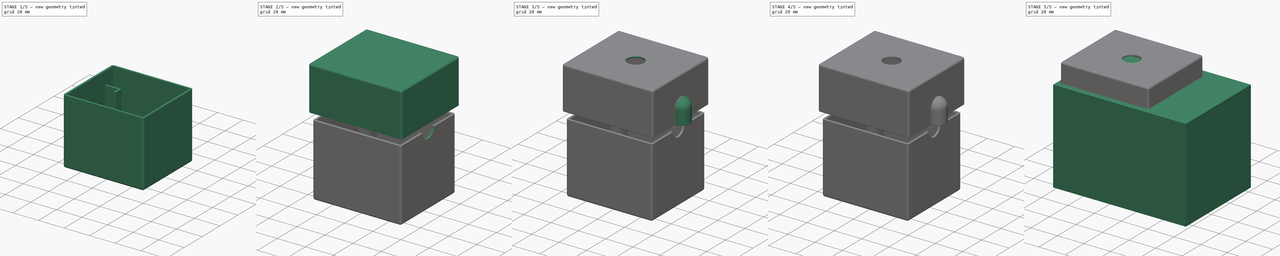
[diagram: build sequence overview — one tinted view per stage of 5, left to right]
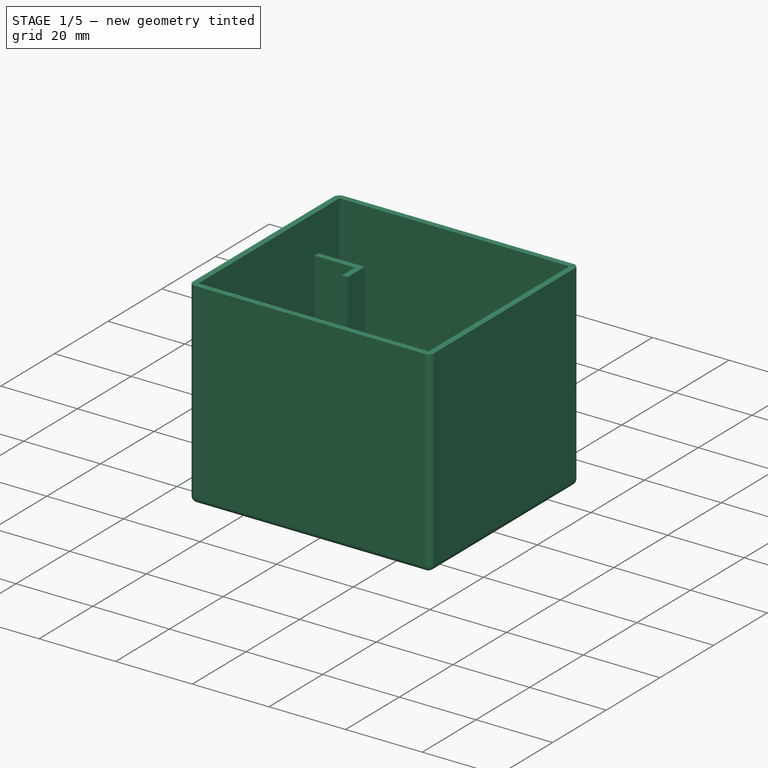
[diagram: stage 1 of 5 — iso view after this stage's code; geometry added in this stage tinted green]
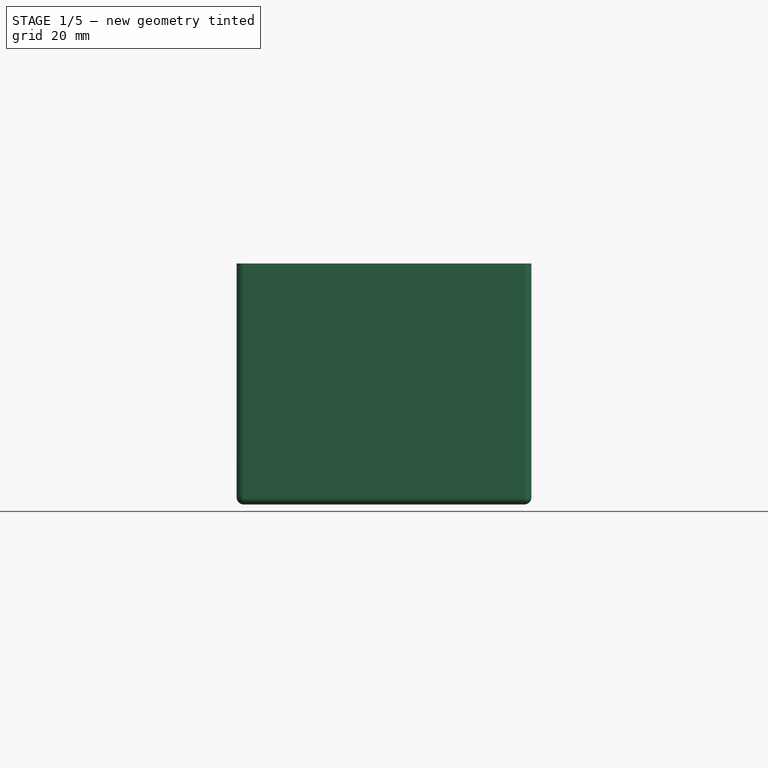
[diagram: stage 1 of 5 — front view after this stage's code; geometry added in this stage tinted green]
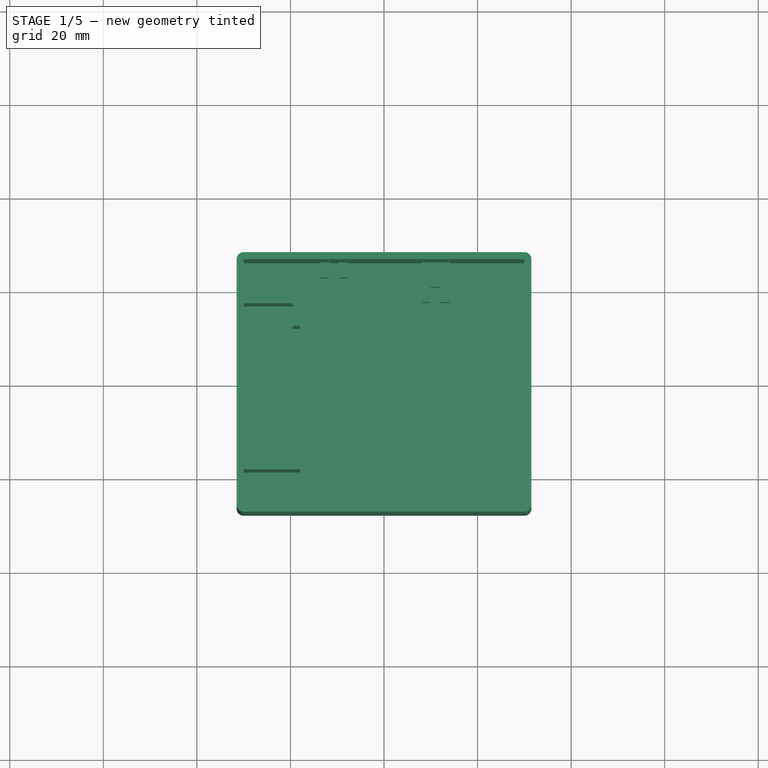
[diagram: stage 1 of 5 — top view after this stage's code; geometry added in this stage tinted green]
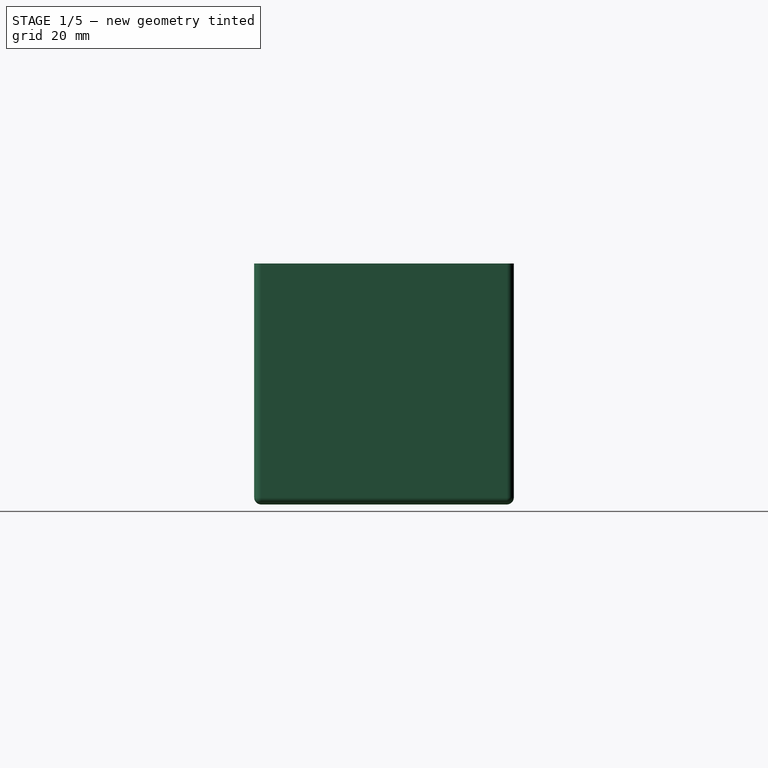
[diagram: stage 1 of 5 — right view after this stage's code; geometry added in this stage tinted green]
FCSTD DOCUMENT  (FreeCAD 0.20R29177 +426 (Git))
Label: MCU-Box
License: All rights reserved
LicenseURL: http://en.wikipedia.org/wiki/All_rights_reserved
objects: Sketcher::SketchObject×18, PartDesign::Pad×9, PartDesign::Pocket×7, PartDesign::Thickness×4, PartDesign::Fillet×4, PartDesign::Body×4, Part::Box×1, PartDesign::Hole×1, PartDesign::Revolution×1
note: 75 computed .brp shape members not serialized (recipe doc carries the construction recipe); baked Part::Feature solids carry a one-line shape summary decoded from their .brp

FEATURE [Sketcher::SketchObject] Sketch  label="Base Sketch"
  FullyConstrained = true
  MapMode = 5
  Support = -> [XY_Plane]
  sketch-geometry (5):
    g0: LineSegment StartX=30 StartY=-26.25 StartZ=0 EndX=30 EndY=26.25 EndZ=0
    g1: LineSegment StartX=30 StartY=26.25 StartZ=0 EndX=-30 EndY=26.25 EndZ=0
    g2: LineSegment StartX=-30 StartY=26.25 StartZ=0 EndX=-30 EndY=-26.25 EndZ=0
    g3: LineSegment StartX=-30 StartY=-26.25 StartZ=0 EndX=30 EndY=-26.25 EndZ=0
    g4: GeomPoint X=0 Y=0 Z=0
  constraints (12):
    c: Coincident(g0,g1)
    c: Coincident(g1,g2)
    c: Coincident(g2,g3)
    c: Coincident(g3,g0)
    c: Horizontal(g1)
    c: Horizontal(g3)
    c: Vertical(g0)
    c: Vertical(g2)
    c: Symmetric(g1,g0,g4)
    c: Coincident(g4,g-1)
    c: DistanceY(g0,g0) = 52.5  'Width'
    c: DistanceX(g1,g1) = 60  'Length'
FEATURE [PartDesign::Pad] Pad  label="BottomBox"
  Direction = (0,0,1)
  Length = 50
  Length2 = 10
  Profile = -> Sketch
  ReferenceAxis = -> Sketch [N_Axis]
  Refine = true
  Type = 0
FEATURE [PartDesign::Thickness] Thickness  label="BottomShell"
  Base = -> Pad [Face6]
  BaseFeature = -> Pad
  Intersection = false
  Join = 0
  Mode = 0
  Refine = true
  SupportTransform = false
  Value = 1.5
FEATURE [Sketcher::SketchObject] Sketch001  label="Batt Sketch"
  ExternalGeometry = -> [Sketch]
  FullyConstrained = false
  MapMode = 5
  Support = -> [Thickness]
  sketch-geometry (7):
    g0: LineSegment StartX=-60.7794 StartY=0 StartZ=0 EndX=55.3393 EndY=0 EndZ=0
    g1: GeomPoint X=-24.75 Y=0 Z=0
    g2: LineSegment StartX=-31.5 StartY=-18.5 StartZ=0 EndX=-31.5 EndY=18.5 EndZ=0
    g3: LineSegment StartX=-31.5 StartY=18.5 StartZ=0 EndX=-18 EndY=18.5 EndZ=0
    g4: LineSegment StartX=-18 StartY=18.5 StartZ=0 EndX=-18 EndY=-18.5 EndZ=0
    g5: LineSegment StartX=-18 StartY=-18.5 StartZ=0 EndX=-31.5 EndY=-18.5 EndZ=0
    g6: GeomPoint X=-24.75 Y=0 Z=0
  constraints (15):
    c: PointOnObject(g1,g0)
    c: Coincident(g2,g3)
    c: Coincident(g3,g4)
    c: Coincident(g4,g5)
    c: Coincident(g5,g2)
    c: Horizontal(g3)
    c: Horizontal(g5)
    c: Vertical(g2)
    c: Vertical(g4)
    c: Symmetric(g3,g2,g6)
    c: Coincident(g6,g1)
    c: Tangent(g0,g-1)
    c: DistanceX(g3,g3) = 13.5
    c: DistanceX(g2,g-3) = 1.5
    c: DistanceY(g2,g2) = 37
FEATURE [PartDesign::Pad] Pad001  label="Batt Holder Box"
  BaseFeature = -> Thickness
  Direction = (0,0,1)
  Length = 40
  Length2 = 10
  Profile = -> Sketch001
  ReferenceAxis = -> Sketch001 [N_Axis]
  Refine = true
  Type = 0
FEATURE [Sketcher::SketchObject] Sketch002
  ExternalGeometry = -> [Sketch001,Pad001]
  FullyConstrained = true
  MapMode = 5
  Placement = pos=(0,0,40) rot=(0,0,1;0rad)
  Support = -> [Pad001]
  sketch-geometry (8):
    g0: LineSegment StartX=-30 StartY=17 StartZ=0 EndX=-19.5 EndY=17 EndZ=0
    g1: LineSegment StartX=-19.5 StartY=-17 StartZ=0 EndX=-30 EndY=-17 EndZ=0
    g2: LineSegment StartX=-30 StartY=-17 StartZ=0 EndX=-30 EndY=17 EndZ=0
    g3: LineSegment StartX=-19.5 StartY=17 StartZ=0 EndX=-19.5 EndY=12.17 EndZ=0
    g4: LineSegment StartX=-19.5 StartY=12.17 StartZ=0 EndX=-16.57 EndY=12.17 EndZ=0
    g5: LineSegment StartX=-16.57 StartY=12.17 StartZ=0 EndX=-16.57 EndY=-12.17 EndZ=0
    g6: LineSegment StartX=-16.57 StartY=-12.17 StartZ=0 EndX=-19.5 EndY=-12.17 EndZ=0
    g7: LineSegment StartX=-19.5 StartY=-12.17 StartZ=0 EndX=-19.5 EndY=-17 EndZ=0
  constraints (24):
    c: Coincident(g1,g2)
    c: Coincident(g2,g0)
    c: Horizontal(g0)
    c: Horizontal(g1)
    c: Vertical(g2)
    c: DistanceY(g0,g-3) = 1.5
    c: DistanceX(g-3,g0) = 1.5
    c: DistanceX(g1,g-4) = 1.5
    c: DistanceY(g-4,g1) = 1.5
    c: Coincident(g0,g3)
    c: Vertical(g3)
    c: Coincident(g3,g4)
    c: Horizontal(g4)
    c: Coincident(g4,g5)
    c: Vertical(g5)
    c: Coincident(g5,g6)
    c: Horizontal(g6)
    c: Coincident(g6,g7)
    c: Coincident(g7,g1)
    c: Vertical(g7)
    c: Equal(g3,g7)
    c: DistanceX(g0,g-5) = 1.5
    c: DistanceY(g3,g3) = 4.83
    c: DistanceX(g4,g4) = 2.93
FEATURE [PartDesign::Pocket] Pocket  label="Batt Holder final"
  BaseFeature = -> Pad001
  Direction = (0,0,-1)
  Length = 40
  Length2 = 5
  Profile = -> Sketch002
  ReferenceAxis = -> Sketch002 [N_Axis]
  Refine = true
  Type = 0
FEATURE [PartDesign::Pad] Pad002  label="PCBHolders"
  BaseFeature = -> Pocket
  Direction = (0,0,1)
  Length = 10
  Length2 = 10
  Profile = -> Sketch003
  ReferenceAxis = -> Sketch003 [N_Axis]
  Refine = true
  Type = 0
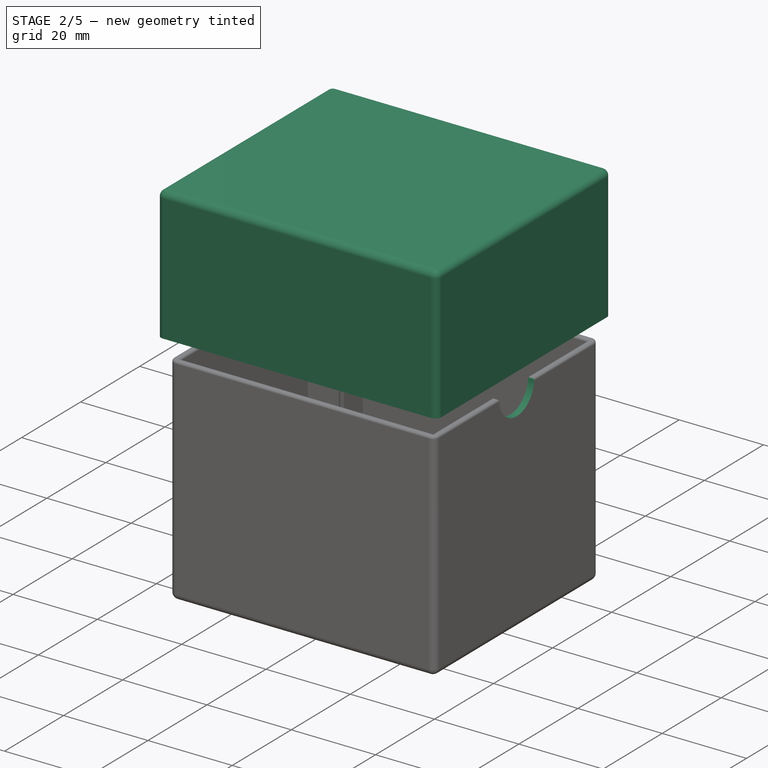
[diagram: stage 2 of 5 — iso view after this stage's code; geometry added in this stage tinted green]
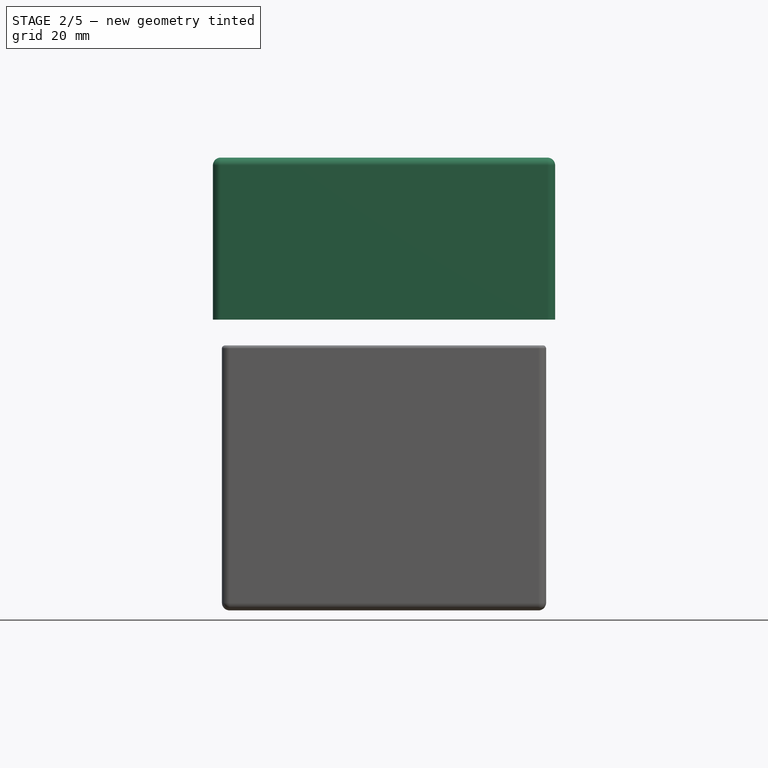
[diagram: stage 2 of 5 — front view after this stage's code; geometry added in this stage tinted green]
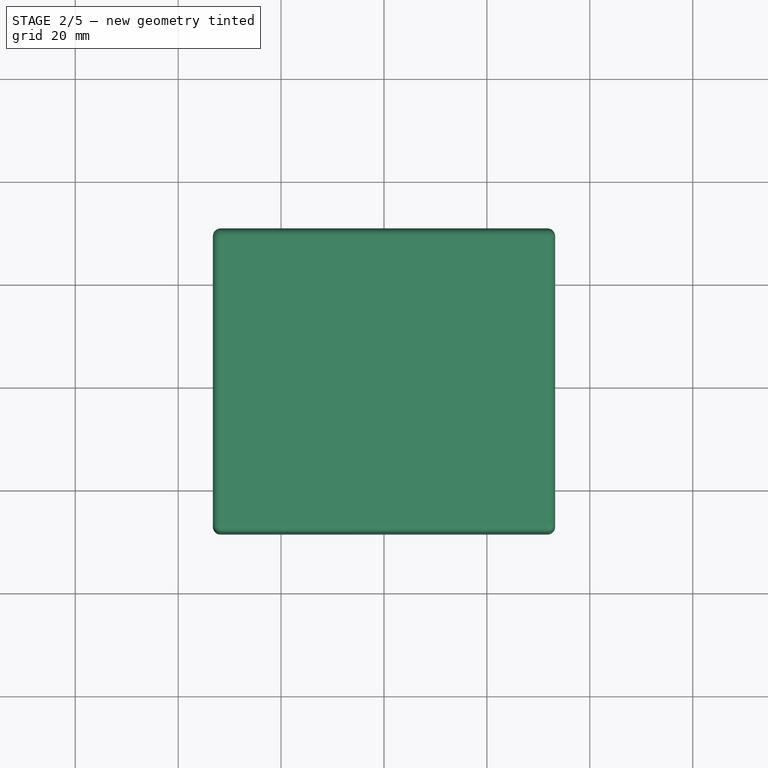
[diagram: stage 2 of 5 — top view after this stage's code; geometry added in this stage tinted green]
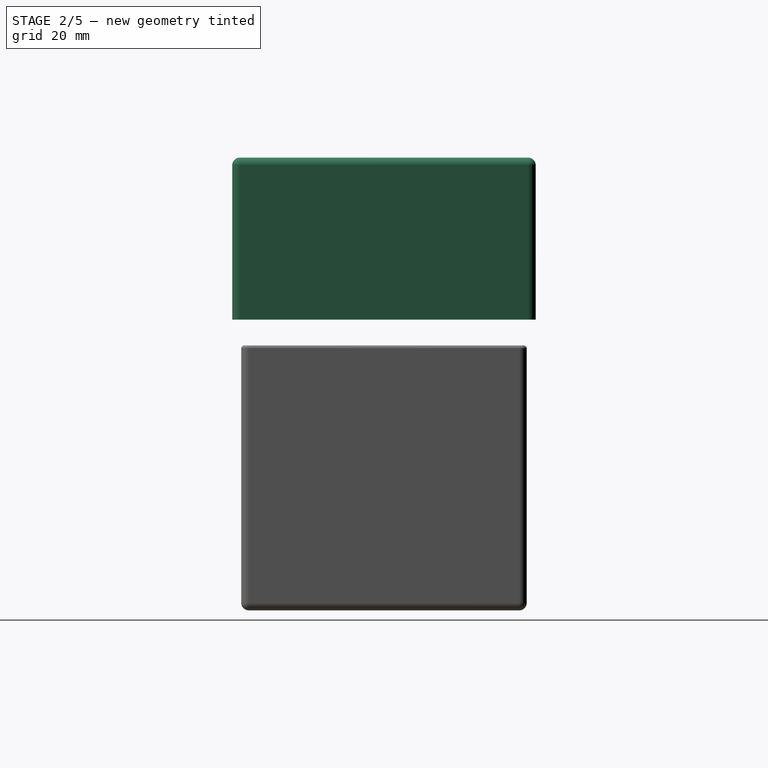
[diagram: stage 2 of 5 — right view after this stage's code; geometry added in this stage tinted green]
FEATURE [PartDesign::Fillet] Fillet  label="Holders Fillet"
  Base = -> Pad002 [Edge126,Edge122,Edge121,Edge117,Edge83,Edge87,Edge88,Edge92,Edge93,Edge152,Edge149,Edge101,Edge116,Edge148,Edge108,Edge145,Edge138,Edge132]
  BaseFeature = -> Pad002
  Radius = 0.74
  Refine = true
  SupportTransform = false
  UseAllEdges = false
FEATURE [Sketcher::SketchObject] Sketch005  label="CableHole"
  FullyConstrained = true
  MapMode = 5
  Placement = pos=(31.5,0,0) rot=(0.57735,0.57735,0.57735;2.0944rad)
  Support = -> [Fillet]
  expr: Constraints[2] = <<BottomBox>>.Length
  sketch-geometry (1):
    g0: Circle CenterX=0 CenterY=50 CenterZ=0 NormalX=0 NormalY=0 NormalZ=1 AngleXU=0 Radius=4
  constraints (3):
    c: Radius(g0) = 4
    c: DistanceX(g-1,g0) = 0
    c: DistanceY(g-1,g0) = 50
FEATURE [PartDesign::Hole] Hole
  BaseFeature = -> Fillet
  CustomThreadClearance = 0
  Depth = 25
  DepthType = 0
  Diameter = 12
  DrillForDepth = false
  DrillPoint = 1
  DrillPointAngle = 118
  HoleCutCountersinkAngle = 90
  HoleCutCustomValues = false
  HoleCutDepth = 0
  HoleCutDiameter = 0
  HoleCutType = 0
  ModelThread = false
  Profile = -> Sketch005
  Refine = true
  Tapered = false
  TaperedAngle = 90
  ThreadClass = 0
  ThreadDepth = 25
  ThreadDepthType = 0
  ThreadDirection = 0
  ThreadFit = 0
  ThreadSize = 0
  ThreadType = 0
  Threaded = false
  UseCustomThreadClearance = false
FEATURE [Sketcher::SketchObject] Sketch006  label="TopBase"
  AttachmentOffset = pos=(0,0,85) rot=(0,0,1;0rad)
  FullyConstrained = true
  MapMode = 5
  Placement = pos=(0,0,85) rot=(0,0,1;0rad)
  Support = -> [XY_Plane001]
  expr: Constraints[6] = <<Base Sketch>>.Constraints.Width + <<BottomShell>>.Value * 2 + 0.5mm
  expr: Constraints[7] = <<Base Sketch>>.Constraints.Length + <<BottomShell>>.Value * 2 + 0.5mm
  sketch-geometry (4):
    g0: LineSegment StartX=-31.75 StartY=28 StartZ=0 EndX=31.75 EndY=28 EndZ=0
    g1: LineSegment StartX=31.75 StartY=28 StartZ=0 EndX=31.75 EndY=-28 EndZ=0
    g2: LineSegment StartX=31.75 StartY=-28 StartZ=0 EndX=-31.75 EndY=-28 EndZ=0
    g3: LineSegment StartX=-31.75 StartY=-28 StartZ=0 EndX=-31.75 EndY=28 EndZ=0
  constraints (10):
    c: Coincident(g0,g1)
    c: Coincident(g1,g2)
    c: Coincident(g2,g3)
    c: Coincident(g3,g0)
    c: Horizontal(g2)
    c: Vertical(g1)
    c: DistanceY(g2,g0) = 56
    c: DistanceX(g0,g0) = 63.5
    c: Symmetric(g0,g0,g-2)
    c: Symmetric(g2,g0,g-1)
FEATURE [PartDesign::Pad] Pad004
  Direction = (0,0,1)
  Length = 30
  Length2 = 10
  Profile = -> Sketch006
  ReferenceAxis = -> Sketch006 [N_Axis]
  Refine = true
  Reversed = true
  Type = 0
FEATURE [PartDesign::Thickness] Thickness001  label="TopShell"
  Base = -> Pad004 [Face6]
  BaseFeature = -> Pad004
  Intersection = false
  Join = 0
  Mode = 0
  Refine = true
  SupportTransform = false
  Value = 1.5
FEATURE [Sketcher::SketchObject] Sketch007  label="Top-Holders"
  ExternalGeometry = -> [Sketch006]
  FullyConstrained = true
  MapMode = 5
  Placement = pos=(0,0,85) rot=(1,0,0;3.14159rad)
  Support = -> [Thickness001]
  expr: Constraints[71] = <<PCBHoldersSketch>>.Constraints.MainPCBWidth
  expr: Constraints[72] = <<PCBHoldersSketch>>.Constraints.MinPowerPCBWidth
  expr: Constraints[81] = <<PCBHoldersSketch>>.Constraints.PCBThickness
  expr: Constraints[82] = <<PCBHoldersSketch>>.Constraints.PCBThickness
  expr: Constraints[83] = <<PCBHoldersSketch>>.Constraints.PCBThickness
  expr: Constraints[84] = <<PCBHoldersSketch>>.Constraints.HolderWidth
  expr: Constraints[85] = <<PCBHoldersSketch>>.Constraints.SideOffsetPower + 1mm
  expr: Constraints[86] = <<PCBHoldersSketch>>.Constraints.SideOffsetMain + 1mm
  sketch-geometry (32):
    g0: LineSegment StartX=-8.45 StartY=23 StartZ=0 EndX=-10.45 EndY=23 EndZ=0
    g1: LineSegment StartX=-10.45 StartY=23 StartZ=0 EndX=-10.45 EndY=28 EndZ=0
    g2: LineSegment StartX=-10.45 StartY=28 StartZ=0 EndX=-8.45 EndY=28 EndZ=0
    g3: LineSegment StartX=-8.45 StartY=28 StartZ=0 EndX=-8.45 EndY=23 EndZ=0
    g4: LineSegment StartX=-12.45 StartY=-23 StartZ=0 EndX=-14.45 EndY=-23 EndZ=0
    g5: LineSegment StartX=-14.45 StartY=28 StartZ=0 EndX=-12.45 EndY=28 EndZ=0
    g6: LineSegment StartX=7.25 StartY=16 StartZ=0 EndX=9.25 EndY=16 EndZ=0
    g7: LineSegment StartX=9.25 StartY=16 StartZ=0 EndX=9.25 EndY=21 EndZ=0
    g8: LineSegment StartX=9.25 StartY=21 StartZ=0 EndX=11.25 EndY=21 EndZ=0
    g9: LineSegment StartX=11.25 StartY=21 StartZ=0 EndX=11.25 EndY=16 EndZ=0
    g10: LineSegment StartX=11.25 StartY=16 StartZ=0 EndX=13.25 EndY=16 EndZ=0
    g11: LineSegment StartX=13.25 StartY=16 StartZ=0 EndX=13.25 EndY=28 EndZ=0
    g12: LineSegment StartX=13.25 StartY=28 StartZ=0 EndX=7.25 EndY=28 EndZ=0
    g13: LineSegment StartX=7.25 StartY=28 StartZ=0 EndX=7.25 EndY=16 EndZ=0
    g14: LineSegment StartX=7.25 StartY=-16 StartZ=0 EndX=9.25 EndY=-16 EndZ=0
    g15: LineSegment StartX=9.25 StartY=-16 StartZ=0 EndX=9.25 EndY=-21 EndZ=0
    g16: LineSegment StartX=9.25 StartY=-21 StartZ=0 EndX=11.25 EndY=-21 EndZ=0
    g17: LineSegment StartX=11.25 StartY=-21 StartZ=0 EndX=11.25 EndY=-16 EndZ=0
    g18: LineSegment StartX=11.25 StartY=-16 StartZ=0 EndX=13.25 EndY=-16 EndZ=0
    g19: LineSegment StartX=13.25 StartY=-16 StartZ=0 EndX=13.25 EndY=-28 EndZ=0
    g20: LineSegment StartX=13.25 StartY=-28 StartZ=0 EndX=7.25 EndY=-28 EndZ=0
    g21: LineSegment StartX=7.25 StartY=-28 StartZ=0 EndX=7.25 EndY=-16 EndZ=0
    g22: LineSegment StartX=-10.45 StartY=-23 StartZ=0 EndX=-10.45 EndY=-28 EndZ=0
    g23: LineSegment StartX=-10.45 StartY=-28 StartZ=0 EndX=-8.45 EndY=-28 EndZ=0
    g24: LineSegment StartX=-8.45 StartY=-28 StartZ=0 EndX=-8.45 EndY=-23 EndZ=0
    g25: LineSegment StartX=-8.45 StartY=-23 StartZ=0 EndX=-10.45 EndY=-23 EndZ=0
    g26: LineSegment StartX=-12.45 StartY=-28 StartZ=0 EndX=-14.45 EndY=-28 EndZ=0
    g27: LineSegment StartX=-14.45 StartY=23 StartZ=0 EndX=-12.45 EndY=23 EndZ=0
    g28: LineSegment StartX=-14.45 StartY=28 StartZ=0 EndX=-14.45 EndY=23 EndZ=0
    g29: LineSegment StartX=-12.45 StartY=28 StartZ=0 EndX=-12.45 EndY=23 EndZ=0
    g30: LineSegment StartX=-14.45 StartY=-23 StartZ=0 EndX=-14.45 EndY=-28 EndZ=0
    g31: LineSegment StartX=-12.45 StartY=-23 StartZ=0 EndX=-12.45 EndY=-28 EndZ=0
  constraints (89):
    c: Coincident(g28,g5)
    c: Coincident(g28,g27)
    c: Coincident(g29,g5)
    c: Coincident(g29,g27)
    c: Vertical(g29)
    c: Coincident(g30,g4)
    c: Coincident(g30,g26)
    c: Vertical(g30)
    c: Coincident(g31,g4)
    c: Coincident(g31,g26)
    c: Tangent(g26,g-3)
    c: Tangent(g23,g-3)
    c: Tangent(g20,g-3)
    c: Tangent(g12,g-4)
    c: Tangent(g2,g-4)
    c: Tangent(g5,g-4)
    c: Coincident(g21,g20)
    c: Coincident(g19,g20)
    c: Coincident(g11,g12)
    c: Coincident(g12,g13)
    c: Coincident(g3,g2)
    c: Coincident(g1,g2)
    c: Coincident(g22,g23)
    c: Coincident(g24,g23)
    c: Vertical(g31)
    c: Vertical(g22)
    c: Vertical(g24)
    c: Vertical(g21)
    c: Vertical(g19)
    c: Vertical(g11)
    c: Vertical(g9)
    c: Vertical(g7)
    c: Vertical(g13)
    c: Vertical(g3)
    c: Vertical(g1)
    c: Vertical(g28)
    c: Horizontal(g27)
    c: Horizontal(g0)
    c: Horizontal(g4)
    c: Horizontal(g6)
    c: Horizontal(g8)
    c: Horizontal(g10)
    c: Horizontal(g14)
    c: Horizontal(g16)
    c: Horizontal(g18)
    c: Horizontal(g25)
    c: Coincident(g7,g8)
    c: Coincident(g9,g8)
    c: Coincident(g10,g9)
    c: Coincident(g6,g7)
    c: Coincident(g6,g13)
    c: Coincident(g10,g11)
    c: Coincident(g18,g17)
    c: Coincident(g18,g19)
    c: Coincident(g14,g15)
    c: Coincident(g14,g21)
    c: Coincident(g25,g22)
    c: Coincident(g24,g25)
    c: Coincident(g0,g1)
    c: Coincident(g0,g3)
    c: Equal(g28,g1)
    c: Equal(g1,g7)
    c: Equal(g7,g9)
    c: Equal(g9,g17)
    c: Equal(g17,g15)
    c: Equal(g15,g22)
    c: Equal(g22,g30)
    c: Coincident(g17,g16)
    c: Coincident(g15,g16)
    c: Vertical(g15)
    c: Vertical(g17)
    c: DistanceY(g15,g7) = 42
    c: DistanceY(g4,g27) = 46
    c: Equal(g27,g0)
    c: Equal(g0,g6)
    c: Equal(g6,g10)
    c: Equal(g10,g18)
    c: Equal(g18,g14)
    c: Equal(g14,g25)
    c: Equal(g25,g4)
    c: Equal(g16,g8)
    c: DistanceX(g27,g0) = 2
    c: DistanceX(g6,g9) = 2
    c: DistanceX(g4,g22) = 2
    c: DistanceX(g27,g27) = 2
    c: DistanceX(g-4,g5) = 17.3
    c: DistanceX(g-4,g12) = 39
    c: Symmetric(g6,g14,g-1)
    c: Vertical(g4,g27)
FEATURE [PartDesign::Pad] Pad005  label="Holders"
  BaseFeature = -> Thickness001
  Direction = (0,0,-1)
  Length = 10
  Length2 = 10
  Profile = -> Sketch007
  ReferenceAxis = -> Sketch007 [N_Axis]
  Refine = true
  Type = 0
FEATURE [PartDesign::Body] Body001  label="Top"
  Group = -> [Sketch006,Pad004,Thickness001,Sketch007,Pad005,Fillet002,Sketch008,Revolution,Sketch009,Pocket001,Sketch019,Pocket007,Fillet003]
  Origin = -> Origin001
  Placement = pos=(0,0,-10) rot=(0,0,1;0rad)
  Tip = -> Fillet003
FEATURE [PartDesign::Fillet] Fillet004  label="FinalFillet"
  Base = -> Hole [Face84,Face61]
  BaseFeature = -> Hole
  Radius = 0.6
  Refine = true
  SupportTransform = false
  UseAllEdges = false
FEATURE [PartDesign::Body] Body  label="Bottom"
  Group = -> [Sketch,Pad,Thickness,Sketch001,Pad001,Sketch002,Pocket,Sketch003,Pad002,Fillet,Sketch005,Hole,Fillet004]
  Origin = -> Origin
  Tip = -> Fillet004
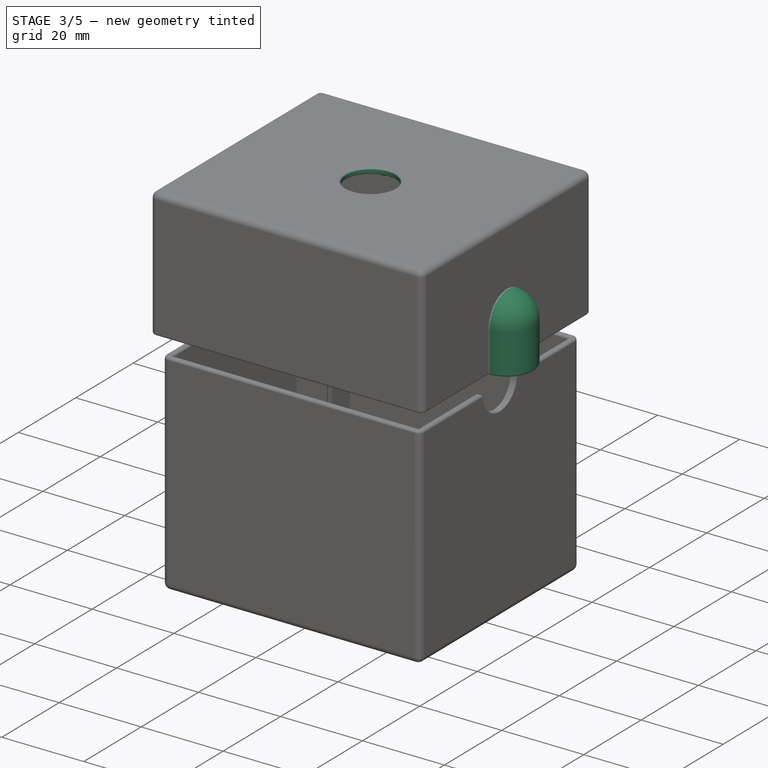
[diagram: stage 3 of 5 — iso view after this stage's code; geometry added in this stage tinted green]
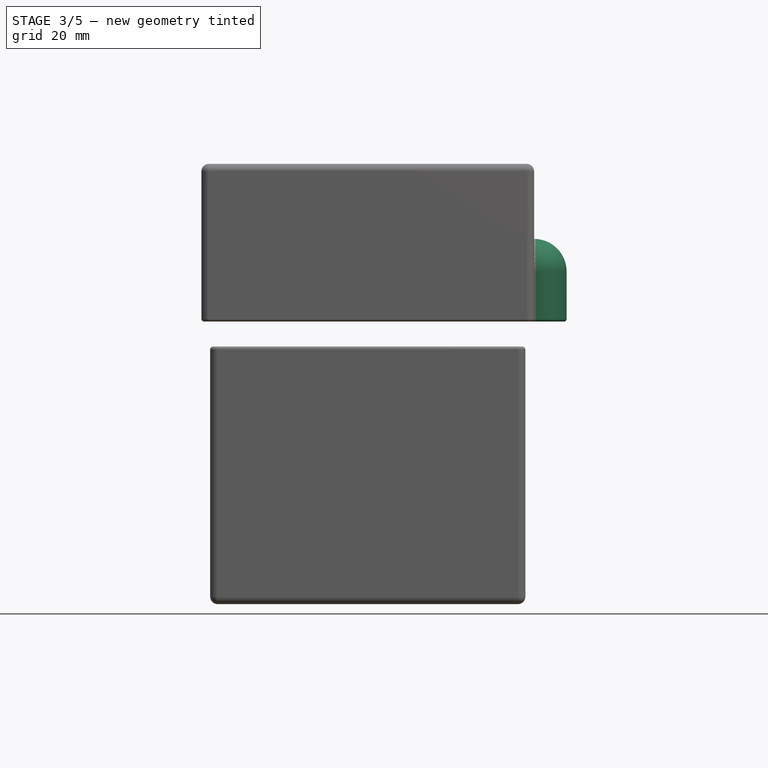
[diagram: stage 3 of 5 — front view after this stage's code; geometry added in this stage tinted green]
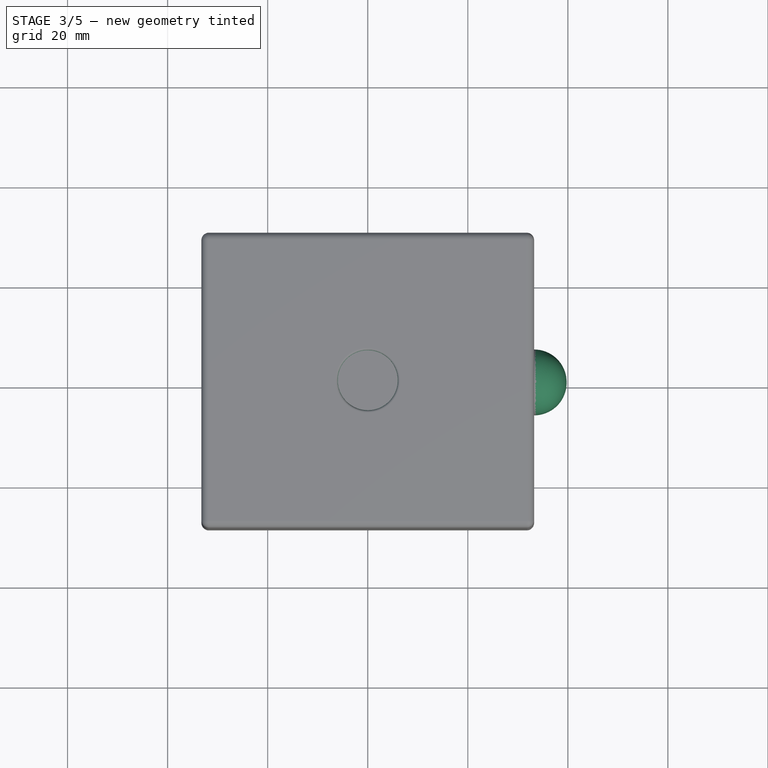
[diagram: stage 3 of 5 — top view after this stage's code; geometry added in this stage tinted green]
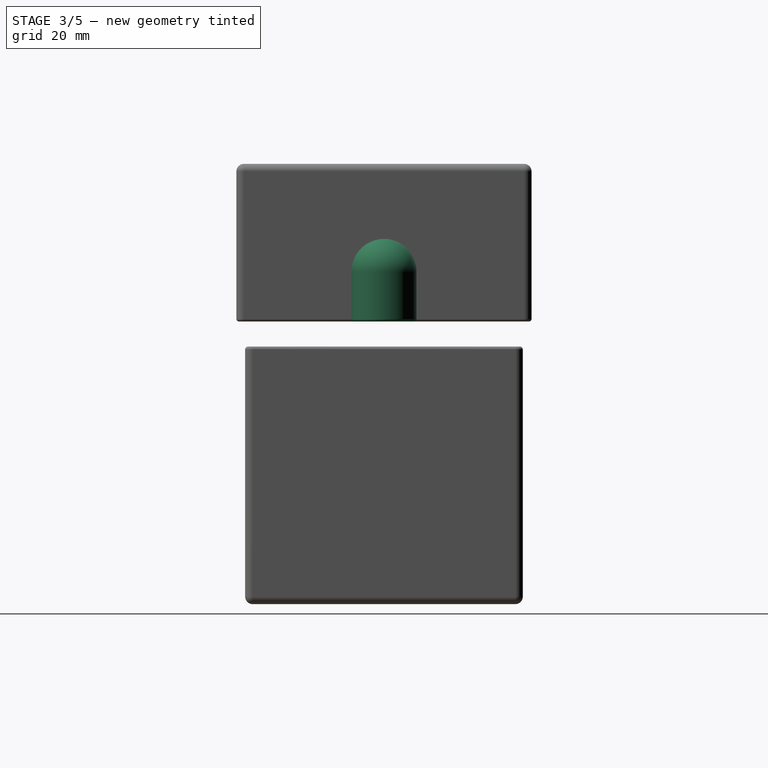
[diagram: stage 3 of 5 — right view after this stage's code; geometry added in this stage tinted green]
FEATURE [PartDesign::Fillet] Fillet002
  Base = -> Pad005 [Edge116,Edge115,Edge113,Edge111,Edge110,Edge108,Edge106,Edge105,Edge103,Edge101,Edge99,Edge97,Edge95,Edge66,Edge65,Edge64,Edge63,Edge62,Edge61,Edge60,Edge56,Edge57,Edge55,Edge51,Edge52,Edge50,Edge114,Edge112,Edge109,Edge107,Edge104,Edge102,Edge96,Edge94,Edge67,Edge84,Edge81,Edge59,Edge58,Edge54,+2 more]
  BaseFeature = -> Pad005
  Radius = 0.75
  Refine = true
  SupportTransform = false
  UseAllEdges = false
FEATURE [Sketcher::SketchObject] Sketch008  label="CableChannelSketch"
  ExternalGeometry = -> [Fillet002]
  FullyConstrained = true
  MapMode = 5
  Placement = pos=(33.25,0,0) rot=(0.57735,0.57735,0.57735;2.0944rad)
  Support = -> [Fillet002]
  sketch-geometry (7):
    g0: LineSegment StartX=-6.5 StartY=55 StartZ=0 EndX=-5 EndY=55 EndZ=0
    g1: LineSegment StartX=-5 StartY=55 StartZ=0 EndX=-5 EndY=65 EndZ=0
    g2: LineSegment StartX=-6.5 StartY=65 StartZ=0 EndX=-6.5 EndY=55 EndZ=0
    g3: GeomPoint X=0 Y=55 Z=0
    g4: ArcOfCircle CenterX=0 CenterY=65 CenterZ=0 NormalX=0 NormalY=0 NormalZ=1 AngleXU=0 Radius=5 StartAngle=1.5708 EndAngle=3.14159
    g5: ArcOfCircle CenterX=0 CenterY=65 CenterZ=0 NormalX=0 NormalY=0 NormalZ=1 AngleXU=0 Radius=6.5 StartAngle=1.5708 EndAngle=3.14159
    g6: LineSegment StartX=4e-16 StartY=71.5 StartZ=0 EndX=3e-16 EndY=70 EndZ=0
  constraints (21):
    c: Coincident(g0,g1)
    c: Coincident(g2,g0)
    c: Horizontal(g0)
    c: Vertical(g1)
    c: Vertical(g2)
    c: PointOnObject(g0,g-3)
    c: DistanceX(g0,g0) = 1.5
    c: DistanceY(g2,g2) = 10
    c: Equal(g2,g1)
    c: PointOnObject(g3,g-2)
    c: PointOnObject(g3,g-3)
    c: DistanceX(g0,g3) = 5
    c: PointOnObject(g4,g-2)
    c: Coincident(g4,g1)
    c: PointOnObject(g4,g-2)
    c: Horizontal(g1,g4)
    c: Coincident(g5,g4)
    c: Coincident(g5,g2)
    c: PointOnObject(g5,g-2)
    c: Coincident(g6,g5)
    c: Coincident(g6,g4)
FEATURE [PartDesign::Revolution] Revolution
  Angle = 180
  Axis = (0,0,1)
  Base = (33.25,0,0)
  BaseFeature = -> Fillet002
  Profile = -> Sketch008
  ReferenceAxis = -> Sketch008 [V_Axis]
  Refine = true
FEATURE [Sketcher::SketchObject] Sketch009
  ExternalGeometry = -> [Sketch008]
  FullyConstrained = true
  MapMode = 5
  Placement = pos=(31.75,0,0) rot=(0.57735,-0.57735,-0.57735;2.0944rad)
  Support = -> [Revolution]
  sketch-geometry (5):
    g0: LineSegment StartX=5 StartY=55 StartZ=0 EndX=5 EndY=65 EndZ=0
    g1: ArcOfCircle CenterX=0 CenterY=65 CenterZ=0 NormalX=0 NormalY=0 NormalZ=1 AngleXU=0 Radius=5 StartAngle=7e-16 EndAngle=1.5708
    g2: LineSegment StartX=-5 StartY=55 StartZ=0 EndX=-5 EndY=65 EndZ=0
    g3: LineSegment StartX=-5 StartY=55 StartZ=0 EndX=5 EndY=55 EndZ=0
    g4: ArcOfCircle CenterX=0 CenterY=65 CenterZ=0 NormalX=0 NormalY=0 NormalZ=1 AngleXU=0 Radius=5 StartAngle=1.5708 EndAngle=3.1416
  constraints (12):
    c: Coincident(g0,g-4)
    c: PointOnObject(g1,g-2)
    c: Coincident(g1,g-4)
    c: Coincident(g1,g-5)
    c: Coincident(g3,g2)
    c: Coincident(g3,g-3)
    c: Symmetric(g-3,g2,g-2)
    c: Vertical(g2)
    c: Coincident(g-5,g4)
    c: Coincident(g4,g1)
    c: Coincident(g4,g2)
    c: Coincident(g0,g-3)
FEATURE [PartDesign::Pocket] Pocket001  label="CutForCable"
  BaseFeature = -> Revolution
  Direction = (1,0,0)
  Length = 5
  Length2 = 5
  Profile = -> Sketch009
  ReferenceAxis = -> Sketch009 [N_Axis]
  Refine = true
  Type = 2
FEATURE [PartDesign::Body] Body003  label="SensorBoxTop"
  Group = -> [Sketch016,Pad009,Thickness003,Sketch017,Pocket005,Sketch018,Pocket006]
  Origin = -> Origin003
  Tip = -> Pocket006
FEATURE [Sketcher::SketchObject] Sketch019  label="SolarCableHoleSketch"
  FullyConstrained = true
  MapMode = 5
  Placement = pos=(0,0,86.5) rot=(0,0,1;0rad)
  sketch-geometry (1):
    g0: Circle CenterX=0 CenterY=0 CenterZ=0 NormalX=0 NormalY=0 NormalZ=1 AngleXU=0 Radius=6
  constraints (2):
    c: Coincident(g0,g-1)
    c: Radius(g0) = 6
FEATURE [PartDesign::Pocket] Pocket007
  BaseFeature = -> Pocket001
  Direction = (0,0,-1)
  Length = 5
  Length2 = 5
  Profile = -> Sketch019
  ReferenceAxis = -> Sketch019 [N_Axis]
  Refine = true
  Type = 2
FEATURE [PartDesign::Fillet] Fillet003
  Base = -> Pocket007 [Face44,Face45,Face3,Face18,Face16,Face62]
  BaseFeature = -> Pocket007
  Radius = 0.5
  Refine = true
  SupportTransform = false
  UseAllEdges = false
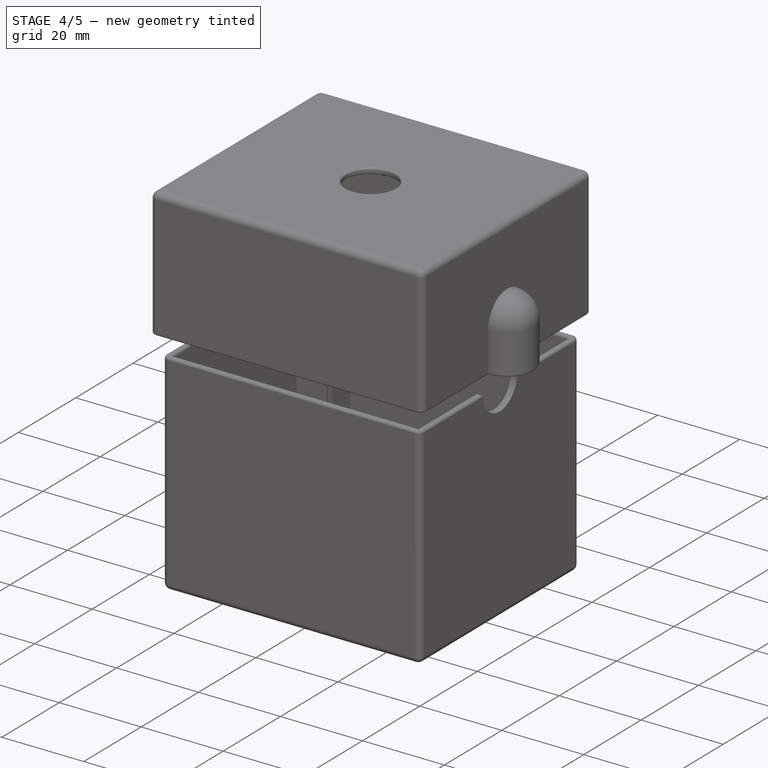
[diagram: stage 4 of 5 — iso view after this stage's code; geometry added in this stage tinted green]
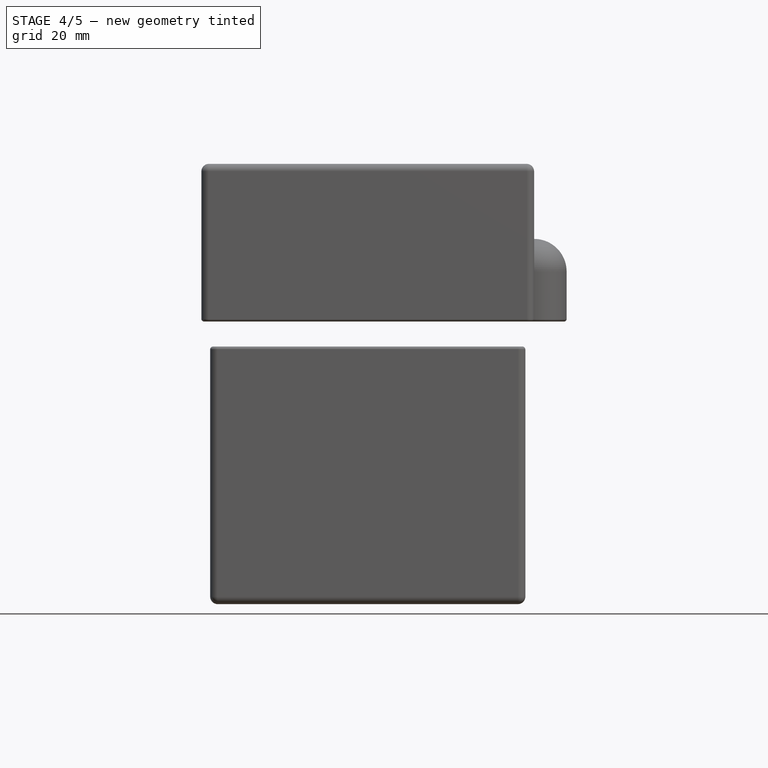
[diagram: stage 4 of 5 — front view after this stage's code; geometry added in this stage tinted green]
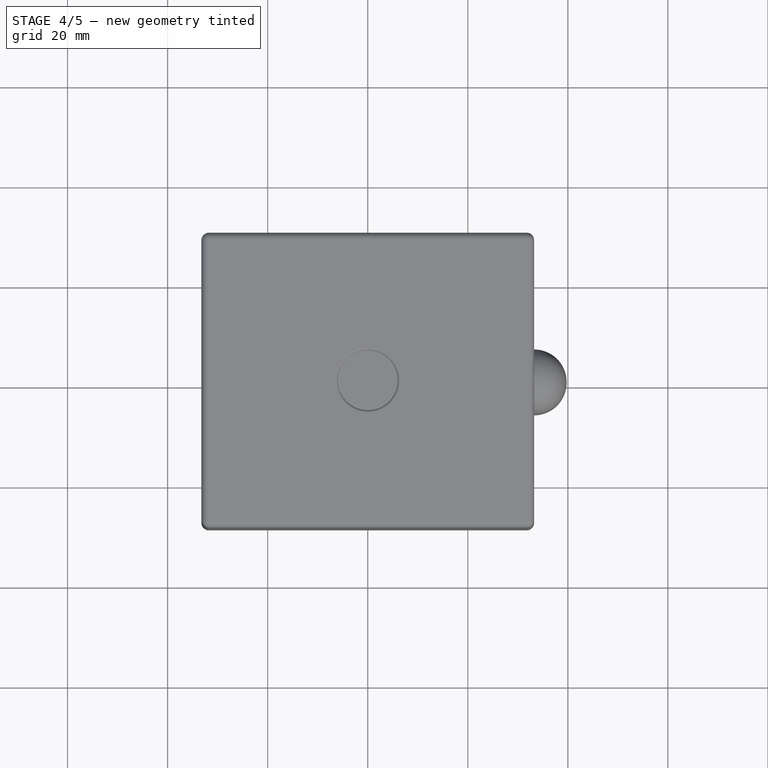
[diagram: stage 4 of 5 — top view after this stage's code; geometry added in this stage tinted green]
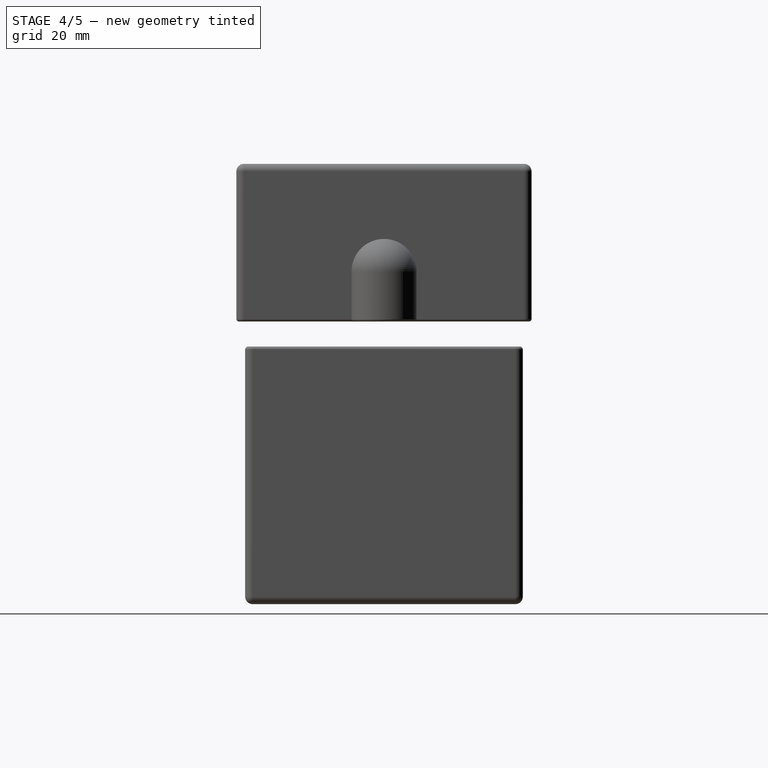
[diagram: stage 4 of 5 — right view after this stage's code; geometry added in this stage tinted green]
FEATURE [Sketcher::SketchObject] Sketch010  label="Base"
  FullyConstrained = true
  MapMode = 5
  Support = -> [XY_Plane002]
  sketch-geometry (5):
    g0: LineSegment StartX=22 StartY=-11.7 StartZ=0 EndX=22 EndY=11.7 EndZ=0
    g1: LineSegment StartX=22 StartY=11.7 StartZ=0 EndX=-22 EndY=11.7 EndZ=0
    g2: LineSegment StartX=-22 StartY=11.7 StartZ=0 EndX=-22 EndY=-11.7 EndZ=0
    g3: LineSegment StartX=-22 StartY=-11.7 StartZ=0 EndX=22 EndY=-11.7 EndZ=0
    g4: GeomPoint X=0 Y=0 Z=0
  constraints (12):
    c: Coincident(g0,g1)
    c: Coincident(g1,g2)
    c: Coincident(g2,g3)
    c: Coincident(g3,g0)
    c: Horizontal(g1)
    c: Horizontal(g3)
    c: Vertical(g0)
    c: Vertical(g2)
    c: Symmetric(g1,g0,g4)
    c: Coincident(g4,g-1)
    c: DistanceX(g1,g1) = 44
    c: DistanceY(g0,g0) = 23.4
FEATURE [PartDesign::Pad] Pad006
  Direction = (0,0,1)
  Length = 2.75
  Length2 = 10
  Profile = -> Sketch010
  ReferenceAxis = -> Sketch010 [N_Axis]
  Refine = true
  Type = 0
FEATURE [PartDesign::Thickness] Thickness002
  Base = -> Pad006 [Face6]
  BaseFeature = -> Pad006
  Intersection = false
  Join = 0
  Mode = 0
  Refine = true
  SupportTransform = false
  Value = 1
FEATURE [PartDesign::Body] Body002  label="SensorBoxBottom"
  Group = -> [Sketch010,Pad006,Thickness002,Sketch011,Pocket002,Sketch012,Pocket003,Sketch013,Pad007,Sketch014,Pad008]
  Origin = -> Origin002
  Tip = -> Pad008
FEATURE [Sketcher::SketchObject] Sketch016  label="Base001"
  FullyConstrained = true
  MapMode = 5
  Support = -> [XY_Plane003]
  sketch-geometry (5):
    g0: LineSegment StartX=22 StartY=-11.7 StartZ=0 EndX=22 EndY=11.7 EndZ=0
    g1: LineSegment StartX=22 StartY=11.7 StartZ=0 EndX=-22 EndY=11.7 EndZ=0
    g2: LineSegment StartX=-22 StartY=11.7 StartZ=0 EndX=-22 EndY=-11.7 EndZ=0
    g3: LineSegment StartX=-22 StartY=-11.7 StartZ=0 EndX=22 EndY=-11.7 EndZ=0
    g4: GeomPoint X=0 Y=0 Z=0
  constraints (12):
    c: Coincident(g0,g1)
    c: Coincident(g1,g2)
    c: Coincident(g2,g3)
    c: Coincident(g3,g0)
    c: Horizontal(g1)
    c: Horizontal(g3)
    c: Vertical(g0)
    c: Vertical(g2)
    c: Symmetric(g1,g0,g4)
    c: Coincident(g4,g-1)
    c: DistanceX(g1,g1) = 44
    c: DistanceY(g0,g0) = 23.4
FEATURE [PartDesign::Pad] Pad009
  Direction = (0,0,1)
  Length = 7
  Length2 = 10
  Profile = -> Sketch016
  ReferenceAxis = -> Sketch016 [N_Axis]
  Refine = true
  Type = 0
FEATURE [PartDesign::Thickness] Thickness003
  Base = -> Pad009 [Face6]
  BaseFeature = -> Pad009
  Intersection = false
  Join = 0
  Mode = 0
  Refine = true
  SupportTransform = false
  Value = 1
FEATURE [Sketcher::SketchObject] Sketch017  label="Plate001"
  ExternalGeometry = -> [Thickness003]
  FullyConstrained = true
  MapMode = 5
  Placement = pos=(23,0,0) rot=(0.57735,0.57735,0.57735;2.0944rad)
  Support = -> [Thickness003]
  sketch-geometry (4):
    g0: LineSegment StartX=-11.7 StartY=7 StartZ=0 EndX=11.7 EndY=7 EndZ=0
    g1: LineSegment StartX=11.7 StartY=7 StartZ=0 EndX=11.7 EndY=6 EndZ=0
    g2: LineSegment StartX=11.7 StartY=6 StartZ=0 EndX=-11.7 EndY=6 EndZ=0
    g3: LineSegment StartX=-11.7 StartY=6 StartZ=0 EndX=-11.7 EndY=7 EndZ=0
  constraints (10):
    c: Coincident(g0,g1)
    c: Coincident(g1,g2)
    c: Coincident(g2,g3)
    c: Coincident(g3,g0)
    c: Horizontal(g2)
    c: Vertical(g1)
    c: Vertical(g3)
    c: Coincident(g0,g-3)
    c: Coincident(g0,g-3)
    c: DistanceY(g3,g3) = 1
FEATURE [PartDesign::Pocket] Pocket005  label="PlateCut001"
  BaseFeature = -> Thickness003
  Direction = (-1,0,0)
  Length = 5
  Length2 = 5
  Profile = -> Sketch017
  ReferenceAxis = -> Sketch017 [N_Axis]
  Refine = true
  Type = 2
FEATURE [Sketcher::SketchObject] Sketch018  label="CableCutSketch001"
  ExternalGeometry = -> [Pocket005]
  FullyConstrained = true
  MapMode = 5
  Placement = pos=(-23,0,0) rot=(0.57735,-0.57735,-0.57735;2.0944rad)
  Support = -> [Pocket005]
  sketch-geometry (1):
    g0: Circle CenterX=0 CenterY=7 CenterZ=0 NormalX=0 NormalY=0 NormalZ=1 AngleXU=0 Radius=2.3
  constraints (3):
    c: PointOnObject(g0,g-3)
    c: Radius(g0) = 2.3
    c: PointOnObject(g0,g-2)
FEATURE [PartDesign::Pocket] Pocket006  label="CableCut001"
  BaseFeature = -> Pocket005
  Direction = (1,0,0)
  Length = 5
  Length2 = 5
  Profile = -> Sketch018
  ReferenceAxis = -> Sketch018 [N_Axis]
  Refine = true
  Type = 2
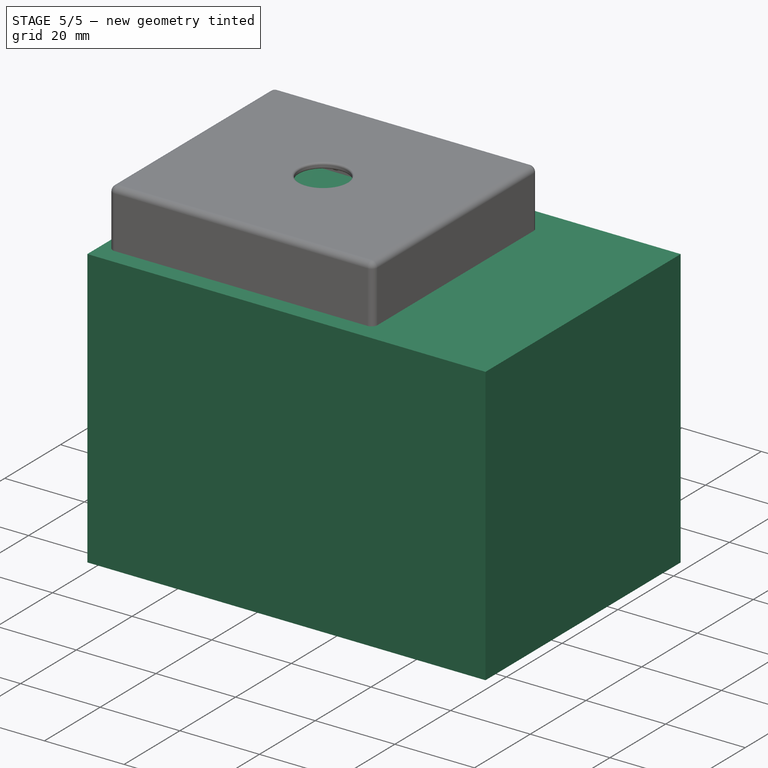
[diagram: stage 5 of 5 — iso view after this stage's code; geometry added in this stage tinted green]
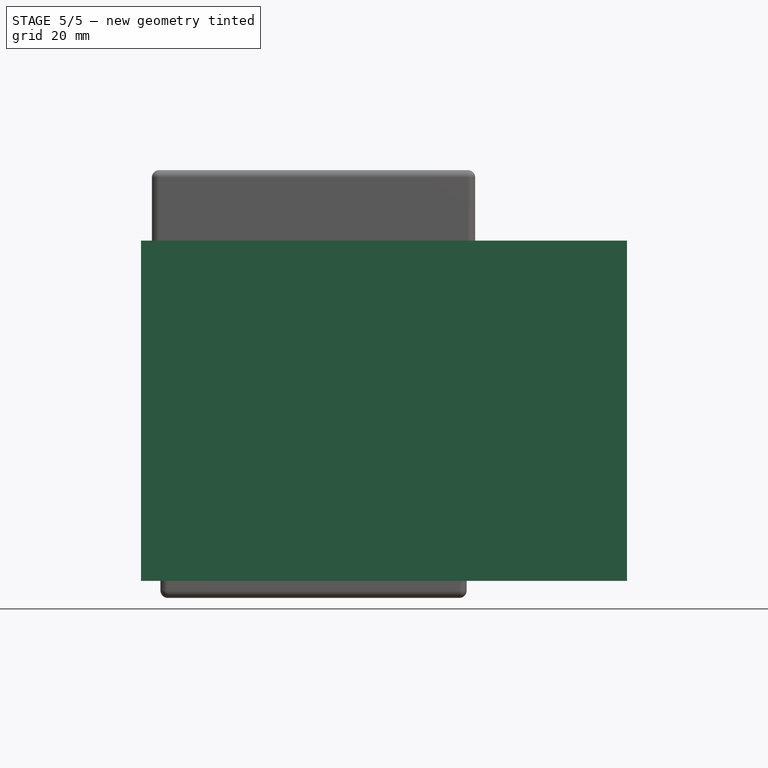
[diagram: stage 5 of 5 — front view after this stage's code; geometry added in this stage tinted green]
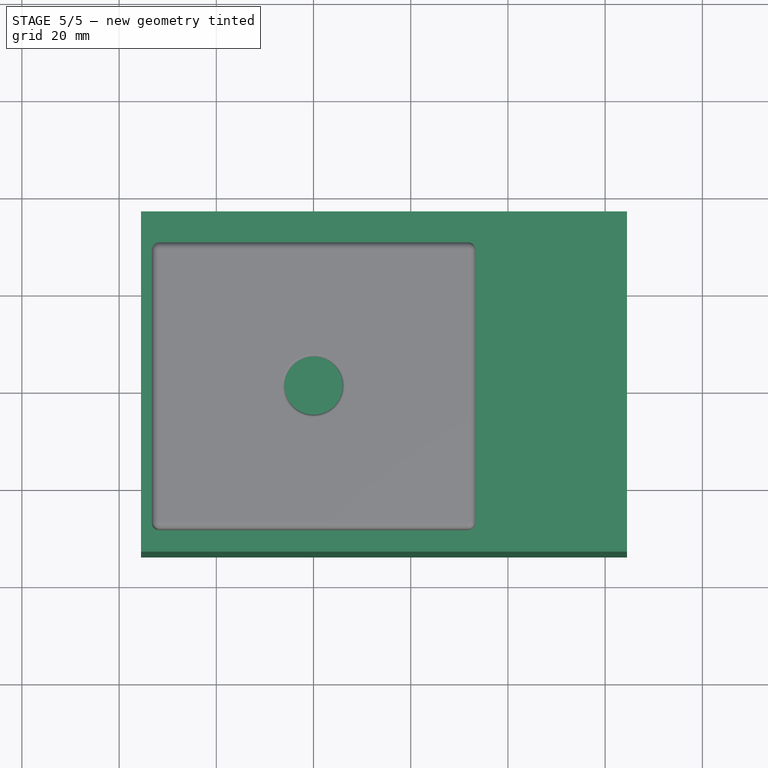
[diagram: stage 5 of 5 — top view after this stage's code; geometry added in this stage tinted green]
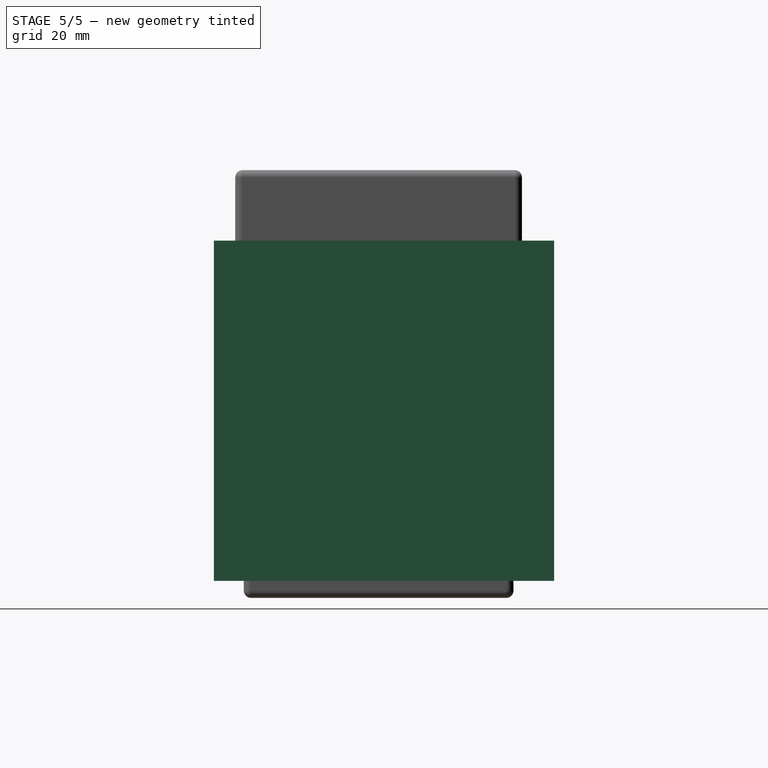
[diagram: stage 5 of 5 — right view after this stage's code; geometry added in this stage tinted green]
FEATURE [Sketcher::SketchObject] Sketch003  label="PCBHoldersSketch"
  ExternalGeometry = -> [Sketch]
  FullyConstrained = true
  MapMode = 5
  Support = -> [Pocket]
  expr: Constraints[36] = .Constraints.PCBThickness
  expr: Constraints[78] = .Constraints.PCBThickness
  expr: Constraints[79] = .Constraints.PCBThickness
  expr: Constraints[80] = .Constraints.HolderWidth
  expr: Constraints[81] = .Constraints.HolderWidth
  expr: Constraints[82] = .Constraints.HolderWidth
  sketch-geometry (32):
    g0: LineSegment StartX=-13.7 StartY=26.25 StartZ=0 EndX=-11.7 EndY=26.25 EndZ=0
    g1: LineSegment StartX=-11.7 StartY=26.25 StartZ=0 EndX=-11.7 EndY=23 EndZ=0
    g2: LineSegment StartX=-11.7 StartY=23 StartZ=0 EndX=-13.7 EndY=23 EndZ=0
    g3: LineSegment StartX=-13.7 StartY=23 StartZ=0 EndX=-13.7 EndY=26.25 EndZ=0
    g4: LineSegment StartX=-9.7 StartY=26.25 StartZ=0 EndX=-7.7 EndY=26.25 EndZ=0
    g5: LineSegment StartX=-7.7 StartY=26.25 StartZ=0 EndX=-7.7 EndY=23 EndZ=0
    g6: LineSegment StartX=-7.7 StartY=23 StartZ=0 EndX=-9.7 EndY=23 EndZ=0
    g7: LineSegment StartX=-9.7 StartY=23 StartZ=0 EndX=-9.7 EndY=26.25 EndZ=0
    g8: LineSegment StartX=-13.7 StartY=-26.25 StartZ=0 EndX=-11.7 EndY=-26.25 EndZ=0
    g9: LineSegment StartX=-11.7 StartY=-26.25 StartZ=0 EndX=-11.7 EndY=-23 EndZ=0
    g10: LineSegment StartX=-11.7 StartY=-23 StartZ=0 EndX=-13.7 EndY=-23 EndZ=0
    g11: LineSegment StartX=-13.7 StartY=-23 StartZ=0 EndX=-13.7 EndY=-26.25 EndZ=0
    g12: LineSegment StartX=-9.7 StartY=-26.25 StartZ=0 EndX=-7.7 EndY=-26.25 EndZ=0
    g13: LineSegment StartX=-7.7 StartY=-26.25 StartZ=0 EndX=-7.7 EndY=-23 EndZ=0
    g14: LineSegment StartX=-7.7 StartY=-23 StartZ=0 EndX=-9.7 EndY=-23 EndZ=0
    g15: LineSegment StartX=-9.7 StartY=-23 StartZ=0 EndX=-9.7 EndY=-26.25 EndZ=0
    g16: LineSegment StartX=8 StartY=26.25 StartZ=0 EndX=8 EndY=17.75 EndZ=0
    g17: LineSegment StartX=8 StartY=17.75 StartZ=0 EndX=10 EndY=17.75 EndZ=0
    g18: LineSegment StartX=10 StartY=17.75 StartZ=0 EndX=10 EndY=21 EndZ=0
    g19: LineSegment StartX=10 StartY=21 StartZ=0 EndX=12 EndY=21 EndZ=0
    g20: LineSegment StartX=12 StartY=21 StartZ=0 EndX=12 EndY=17.75 EndZ=0
    g21: LineSegment StartX=12 StartY=17.75 StartZ=0 EndX=14 EndY=17.75 EndZ=0
    g22: LineSegment StartX=14 StartY=17.75 StartZ=0 EndX=14 EndY=26.25 EndZ=0
    g23: LineSegment StartX=14 StartY=26.25 StartZ=0 EndX=8 EndY=26.25 EndZ=0
    g24: LineSegment StartX=8 StartY=-26.25 StartZ=0 EndX=8 EndY=-17.75 EndZ=0
    g25: LineSegment StartX=8 StartY=-17.75 StartZ=0 EndX=10 EndY=-17.75 EndZ=0
    g26: LineSegment StartX=10 StartY=-17.75 StartZ=0 EndX=10 EndY=-21 EndZ=0
    g27: LineSegment StartX=10 StartY=-21 StartZ=0 EndX=12 EndY=-21 EndZ=0
    g28: LineSegment StartX=12 StartY=-21 StartZ=0 EndX=12 EndY=-17.75 EndZ=0
    g29: LineSegment StartX=12 StartY=-17.75 StartZ=0 EndX=14 EndY=-17.75 EndZ=0
    g30: LineSegment StartX=14 StartY=-17.75 StartZ=0 EndX=14 EndY=-26.25 EndZ=0
    g31: LineSegment StartX=14 StartY=-26.25 StartZ=0 EndX=8 EndY=-26.25 EndZ=0
  constraints (90):
    c: Coincident(g0,g1)
    c: Coincident(g1,g2)
    c: Coincident(g2,g3)
    c: Coincident(g3,g0)
    c: Horizontal(g2)
    c: Vertical(g1)
    c: Vertical(g3)
    c: Coincident(g4,g5)
    c: Coincident(g5,g6)
    c: Coincident(g6,g7)
    c: Coincident(g7,g4)
    c: Horizontal(g6)
    c: Vertical(g5)
    c: Vertical(g7)
    c: Coincident(g8,g9)
    c: Coincident(g9,g10)
    c: Coincident(g10,g11)
    c: Coincident(g11,g8)
    c: Horizontal(g10)
    c: Vertical(g9)
    c: Vertical(g11)
    c: Coincident(g12,g13)
    c: Coincident(g13,g14)
    c: Coincident(g14,g15)
    c: Coincident(g15,g12)
    c: Horizontal(g14)
    c: Vertical(g13)
    c: Vertical(g15)
    c: Equal(g15,g9)
    c: Equal(g11,g3)
    c: Equal(g1,g7)
    c: Equal(g2,g6)
    c: Equal(g6,g14)
    c: Equal(g14,g10)
    c: DistanceX(g0,g0) = 2  'HolderWidth'
    c: DistanceX(g0,g4) = 2  'PCBThickness'
    c: DistanceX(g8,g12) = 2
    c: Vertical(g2,g10)
    c: DistanceY(g14,g6) = 46  'MinPowerPCBWidth'
    c: Tangent(g8,g-6)
    c: Tangent(g-6,g12)
    c: Tangent(g-3,g0)
    c: Tangent(g-3,g4)
    c: DistanceX(g-4,g0) = 16.3  'SideOffsetPower'
    c: PointOnObject(g16,g-3)
    c: Vertical(g16)
    c: Coincident(g16,g17)
    c: Horizontal(g17)
    c: Coincident(g17,g18)
    c: Vertical(g18)
    c: Coincident(g18,g19)
    c: Horizontal(g19)
    c: Coincident(g19,g20)
    c: Vertical(g20)
    c: Coincident(g20,g21)
    c: Horizontal(g21)
    c: Coincident(g21,g22)
    c: PointOnObject(g22,g-3)
    c: Vertical(g22)
    c: Coincident(g22,g23)
    c: Coincident(g23,g16)
    c: PointOnObject(g24,g-6)
    c: Vertical(g24)
    c: Coincident(g24,g25)
    c: Horizontal(g25)
    c: Coincident(g25,g26)
    c: Vertical(g26)
    c: Coincident(g26,g27)
    c: Horizontal(g27)
    c: Coincident(g27,g28)
    c: Vertical(g28)
    c: Coincident(g28,g29)
    c: Horizontal(g29)
    c: Coincident(g29,g30)
    c: PointOnObject(g30,g-6)
    c: Vertical(g30)
    c: Coincident(g30,g31)
    c: Coincident(g31,g24)
    c: DistanceX(g25,g28) = 2
    c: DistanceX(g17,g20) = 2
    c: DistanceX(g16,g17) = 2
    c: DistanceX(g20,g21) = 2
    c: DistanceX(g28,g29) = 2
    c: DistanceX(g-4,g16) = 38  'SideOffsetMain'
    c: DistanceY(g26,g18) = 42  'MainPCBWidth'
    c: Horizontal(g17,g20)
    c: Horizontal(g25,g28)
    c: Symmetric(g18,g26,g-1)
    c: Symmetric(g24,g16,g-1)
    c: Equal(g18,g3)
FEATURE [Part::Box] Box  label="Cutter for Test prints"
  AttacherType = Attacher::AttachEngine3D
  Height = 70
  Length = 100
  Placement = pos=(-35.5,-33.9,2) rot=(0,0,1;0rad)
  Width = 70
FEATURE [Sketcher::SketchObject] Sketch011  label="Plate"
  ExternalGeometry = -> [Thickness002]
  FullyConstrained = true
  MapMode = 5
  Placement = pos=(23,0,0) rot=(0.57735,0.57735,0.57735;2.0944rad)
  Support = -> [Thickness002]
  sketch-geometry (4):
    g0: LineSegment StartX=-11.7 StartY=2.75 StartZ=0 EndX=11.7 EndY=2.75 EndZ=0
    g1: LineSegment StartX=11.7 StartY=2.75 StartZ=0 EndX=11.7 EndY=1.75 EndZ=0
    g2: LineSegment StartX=11.7 StartY=1.75 StartZ=0 EndX=-11.7 EndY=1.75 EndZ=0
    g3: LineSegment StartX=-11.7 StartY=1.75 StartZ=0 EndX=-11.7 EndY=2.75 EndZ=0
  constraints (10):
    c: Coincident(g0,g1)
    c: Coincident(g1,g2)
    c: Coincident(g2,g3)
    c: Coincident(g3,g0)
    c: Horizontal(g2)
    c: Vertical(g1)
    c: Vertical(g3)
    c: Coincident(g0,g-3)
    c: Coincident(g0,g-3)
    c: DistanceY(g3,g3) = 1
FEATURE [PartDesign::Pocket] Pocket002  label="PlateCut"
  BaseFeature = -> Thickness002
  Direction = (-1,0,0)
  Length = 5
  Length2 = 5
  Profile = -> Sketch011
  ReferenceAxis = -> Sketch011 [N_Axis]
  Refine = true
  Type = 2
FEATURE [Sketcher::SketchObject] Sketch012  label="CableCutSketch"
  ExternalGeometry = -> [Pocket002]
  FullyConstrained = true
  MapMode = 5
  Placement = pos=(-23,0,0) rot=(0.57735,-0.57735,-0.57735;2.0944rad)
  Support = -> [Pocket002]
  sketch-geometry (1):
    g0: Circle CenterX=0 CenterY=2.75 CenterZ=0 NormalX=0 NormalY=0 NormalZ=1 AngleXU=0 Radius=2.3
  constraints (3):
    c: Radius(g0) = 2.3
    c: PointOnObject(g0,g-2)
    c: PointOnObject(g0,g-3)
FEATURE [PartDesign::Pocket] Pocket003  label="CableCut"
  BaseFeature = -> Pocket002
  Direction = (1,0,0)
  Length = 5
  Length2 = 5
  Profile = -> Sketch012
  ReferenceAxis = -> Sketch012 [N_Axis]
  Refine = true
  Type = 2
FEATURE [Sketcher::SketchObject] Sketch013
  ExternalGeometry = -> [Pocket003]
  FullyConstrained = true
  MapMode = 5
  Support = -> [Pocket003]
  sketch-geometry (4):
    g0: ArcOfCircle CenterX=12 CenterY=11.7 CenterZ=0 NormalX=0 NormalY=0 NormalZ=1 AngleXU=0 Radius=1.2 StartAngle=3.14159 EndAngle=6.28319
    g1: ArcOfCircle CenterX=12 CenterY=-11.7 CenterZ=0 NormalX=0 NormalY=0 NormalZ=1 AngleXU=0 Radius=1.2 StartAngle=0 EndAngle=3.14159
    g2: LineSegment StartX=10.8 StartY=-11.7 StartZ=0 EndX=13.2 EndY=-11.7 EndZ=0
    g3: LineSegment StartX=10.8 StartY=11.7 StartZ=0 EndX=13.2 EndY=11.7 EndZ=0
  constraints (14):
    c: Radius(g0) = 1.2
    c: Radius(g1) = 1.2
    c: Coincident(g2,g1)
    c: Coincident(g2,g1)
    c: Coincident(g3,g0)
    c: Coincident(g3,g0)
    c: PointOnObject(g0,g-3)
    c: PointOnObject(g0,g-3)
    c: PointOnObject(g0,g-3)
    c: PointOnObject(g1,g-4)
    c: PointOnObject(g1,g-4)
    c: PointOnObject(g1,g-4)
    c: DistanceX(g1,g-4) = 10
    c: DistanceX(g0,g-3) = 10
FEATURE [PartDesign::Pad] Pad007  label="Holders001"
  BaseFeature = -> Pocket003
  Direction = (0,0,1)
  Length = 2.75
  Length2 = 10
  Profile = -> Sketch013
  ReferenceAxis = -> Sketch013 [N_Axis]
  Refine = true
  Type = 0
FEATURE [Sketcher::SketchObject] Sketch014  label="Underholder"
  ExternalGeometry = -> [Pad007]
  FullyConstrained = true
  MapMode = 5
  Support = -> [Pad007]
  sketch-geometry (4):
    g0: LineSegment StartX=-6.2 StartY=-11.7 StartZ=0 EndX=-4.2 EndY=-11.7 EndZ=0
    g1: LineSegment StartX=-4.2 StartY=-11.7 StartZ=0 EndX=-4.2 EndY=11.7 EndZ=0
    g2: LineSegment StartX=-4.2 StartY=11.7 StartZ=0 EndX=-6.2 EndY=11.7 EndZ=0
    g3: LineSegment StartX=-6.2 StartY=11.7 StartZ=0 EndX=-6.2 EndY=-11.7 EndZ=0
  constraints (12):
    c: Coincident(g0,g1)
    c: Coincident(g1,g2)
    c: Coincident(g2,g3)
    c: Coincident(g3,g0)
    c: Vertical(g1)
    c: Vertical(g3)
    c: DistanceX(g0,g0) = 2
    c: Horizontal(g0)
    c: DistanceX(g0,g-6) = 15
    c: PointOnObject(g1,g-6)
    c: PointOnObject(g0,g-3)
    c: Horizontal(g2)
FEATURE [PartDesign::Pad] Pad008  label="Underholder001"
  BaseFeature = -> Pad007
  Direction = (0,0,1)
  Length = 2
  Length2 = 10
  Profile = -> Sketch014
  ReferenceAxis = -> Sketch014 [N_Axis]
  Refine = true
  Type = 0
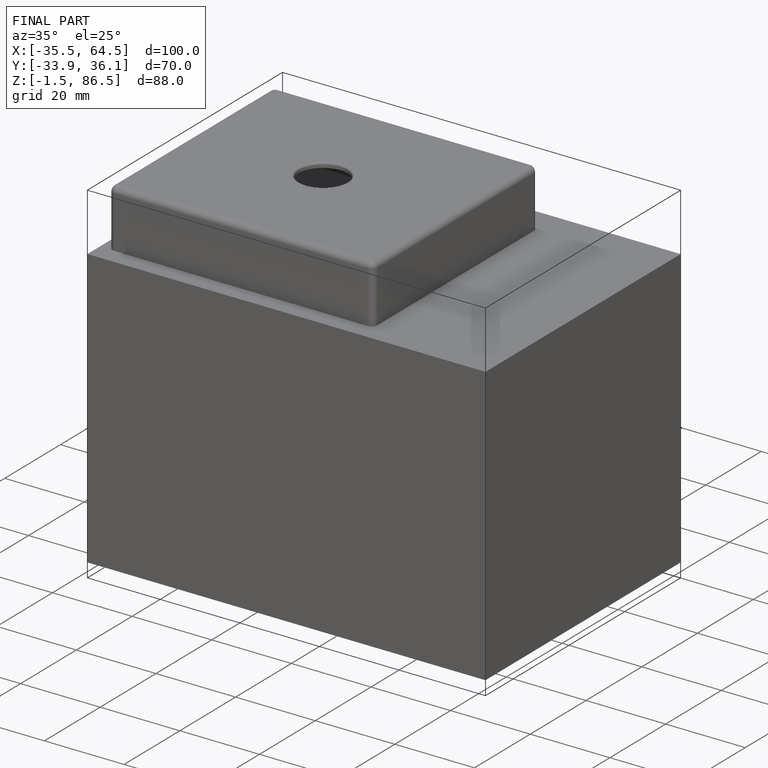
[diagram: finished part — iso view with bounding-box wireframe]
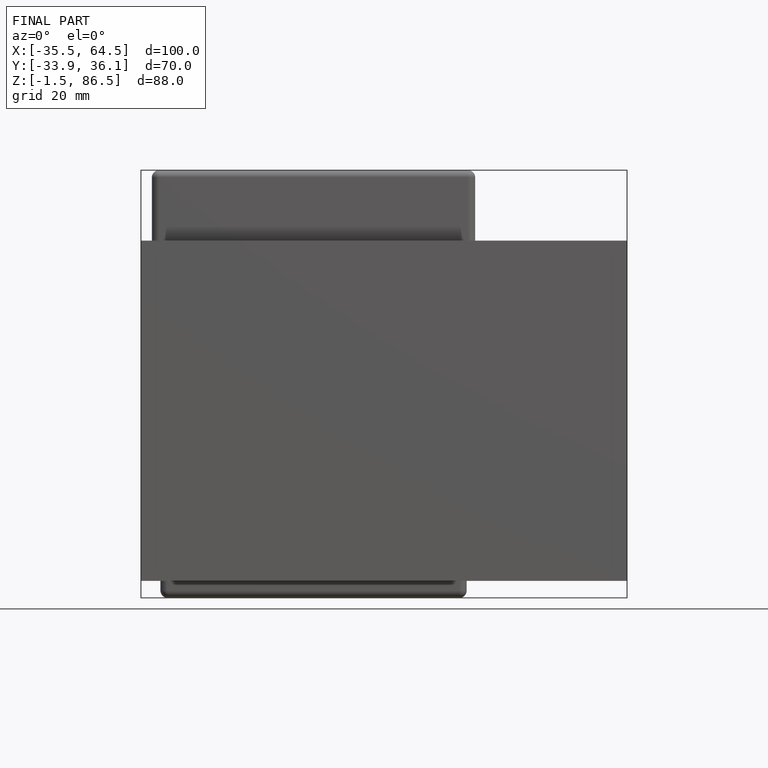
[diagram: finished part — front view with bounding-box wireframe]
